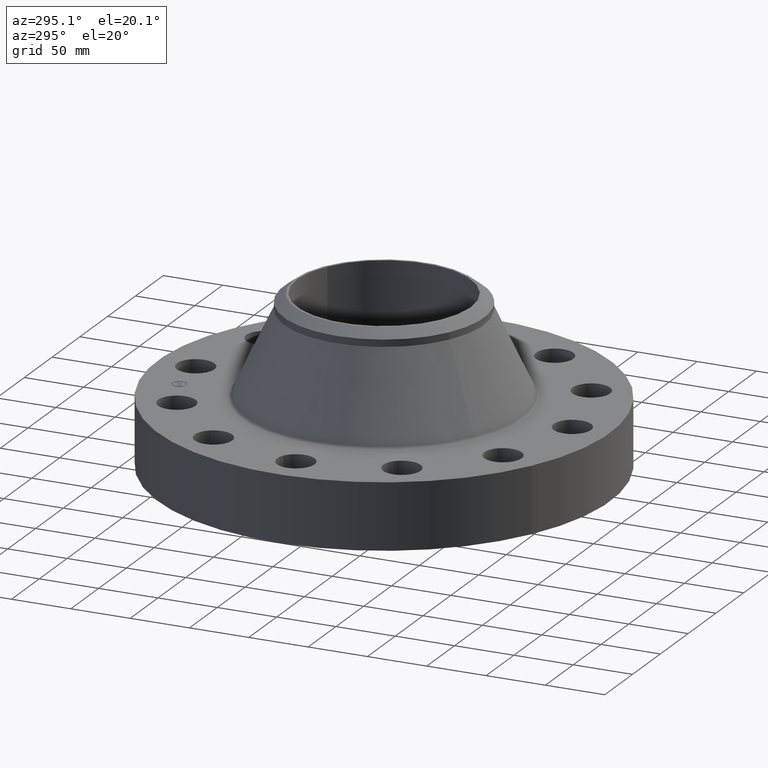
[diagram: clean part render]
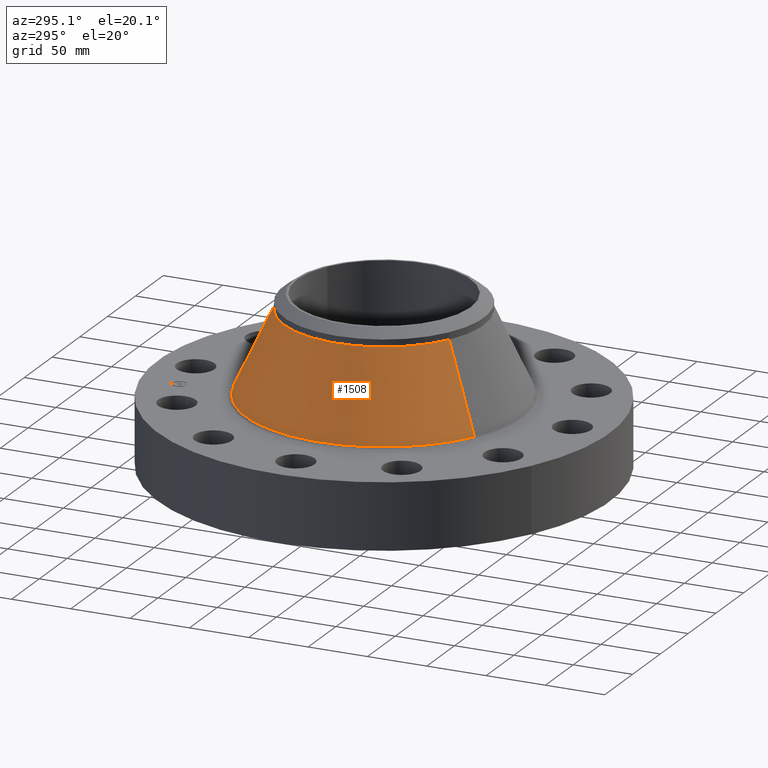
[diagram: same view with one face highlighted and labeled with its STEP entity id]
A machine part, auxiliary view. The second image highlights one B-rep face of the part: STEP entity #1508.
In plain terms, the highlighted conical surface has half-angle 25.067 deg.
Its self-contained STEP definition (entity closure, byte-faithful):
#1320=AXIS2_PLACEMENT_3D('Circle Axis2P3D',#1318,#1319,$) ;
#1481=AXIS2_PLACEMENT_3D('Cone Axis2P3D',#1478,#1479,#1480) ;
#1492=AXIS2_PLACEMENT_3D('Circle Axis2P3D',#1490,#1491,$) ;
#1315=CARTESIAN_POINT('Vertex',(-2.20183489246,-4.03043173589,2.25915936193)) ;
#1318=CARTESIAN_POINT('Axis2P3D Location',(0.,0.,2.25915936193)) ;
#1322=CARTESIAN_POINT('Vertex',(2.20183489246,4.03043173589,2.25915936193)) ;
#1478=CARTESIAN_POINT('Axis2P3D Location',(0.,0.,4.99079539918)) ;
#1483=CARTESIAN_POINT('Line Origine',(-1.89556527647,-3.46980896428,3.62497738055)) ;
#1487=CARTESIAN_POINT('Vertex',(-1.58929566048,-2.90918619268,4.99079539918)) ;
#1490=CARTESIAN_POINT('Axis2P3D Location',(0.,0.,4.99079539918)) ;
#1494=CARTESIAN_POINT('Vertex',(1.58929566048,2.90918619268,4.99079539918)) ;
#1497=CARTESIAN_POINT('Line Origine',(1.89556527647,3.46980896428,3.62497738055)) ;
#1319=DIRECTION('Axis2P3D Direction',(-0.,0.,-0.0393700787402)) ;
#1479=DIRECTION('Axis2P3D Direction',(0.,0.,-0.0393700787402)) ;
#1480=DIRECTION('Axis2P3D XDirection',(-0.0188750212049,-0.0345504945626,0.)) ;
#1484=DIRECTION('Vector Direction',(-0.00799681768214,-0.0146380765799,-0.0356620347289)) ;
#1491=DIRECTION('Axis2P3D Direction',(-0.,0.,-0.0393700787402)) ;
#1498=DIRECTION('Vector Direction',(0.00799681768214,0.0146380765799,-0.0356620347289)) ;
#1485=VECTOR('Line Direction',#1484,0.0393700787402) ;
#1499=VECTOR('Line Direction',#1498,0.0393700787402) ;
#1503=ORIENTED_EDGE('',*,*,#1324,.F.) ;
#1504=ORIENTED_EDGE('',*,*,#1489,.T.) ;
#1505=ORIENTED_EDGE('',*,*,#1496,.T.) ;
#1506=ORIENTED_EDGE('',*,*,#1501,.F.) ;
#1508=ADVANCED_FACE('PartBody',(#1507),#1482,.T.) ;
#1321=CIRCLE('generated circle',#1320,4.59265248754) ;
#1493=CIRCLE('generated circle',#1492,3.31500000001) ;
#1482=CONICAL_SURFACE('Cone',#1481,3.31500000001,0.437495282487) ;
#1324=EDGE_CURVE('',#1316,#1323,#1321,.T.) ;
#1489=EDGE_CURVE('',#1316,#1488,#1486,.F.) ;
#1496=EDGE_CURVE('',#1488,#1495,#1493,.T.) ;
#1501=EDGE_CURVE('',#1323,#1495,#1500,.F.) ;
#1502=EDGE_LOOP('',(#1503,#1504,#1505,#1506)) ;
#1507=FACE_OUTER_BOUND('',#1502,.T.) ;
#1486=LINE('Line',#1483,#1485) ;
#1500=LINE('Line',#1497,#1499) ;
#1316=VERTEX_POINT('',#1315) ;
#1323=VERTEX_POINT('',#1322) ;
#1488=VERTEX_POINT('',#1487) ;
#1495=VERTEX_POINT('',#1494) ;